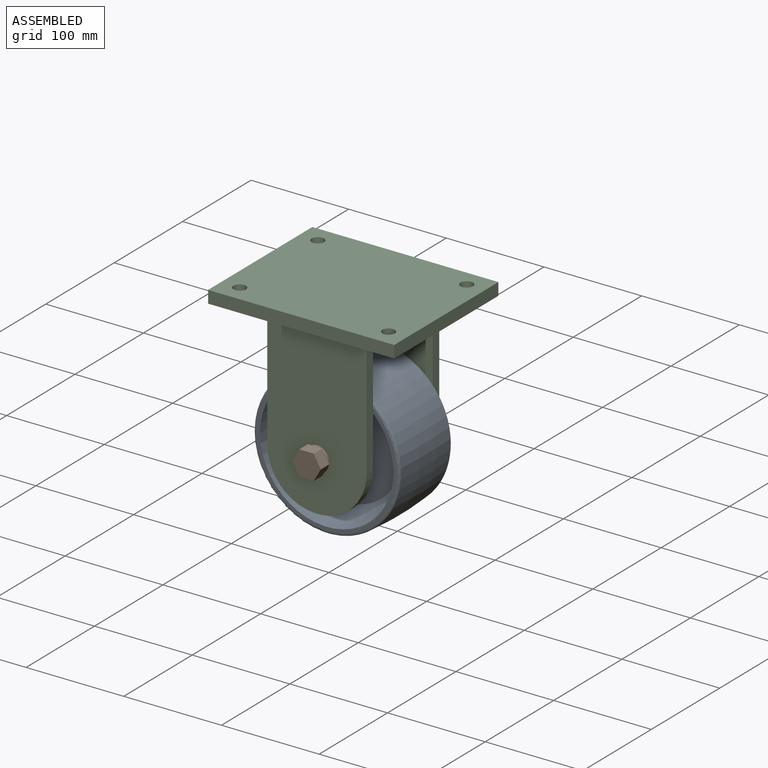
[diagram: assembled view]
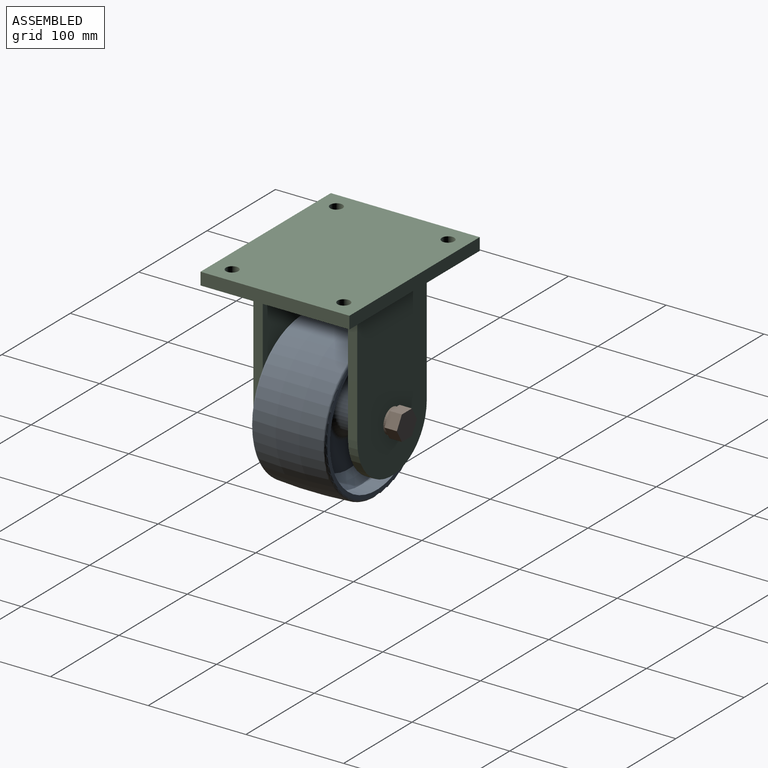
[diagram: assembled view, second angle]
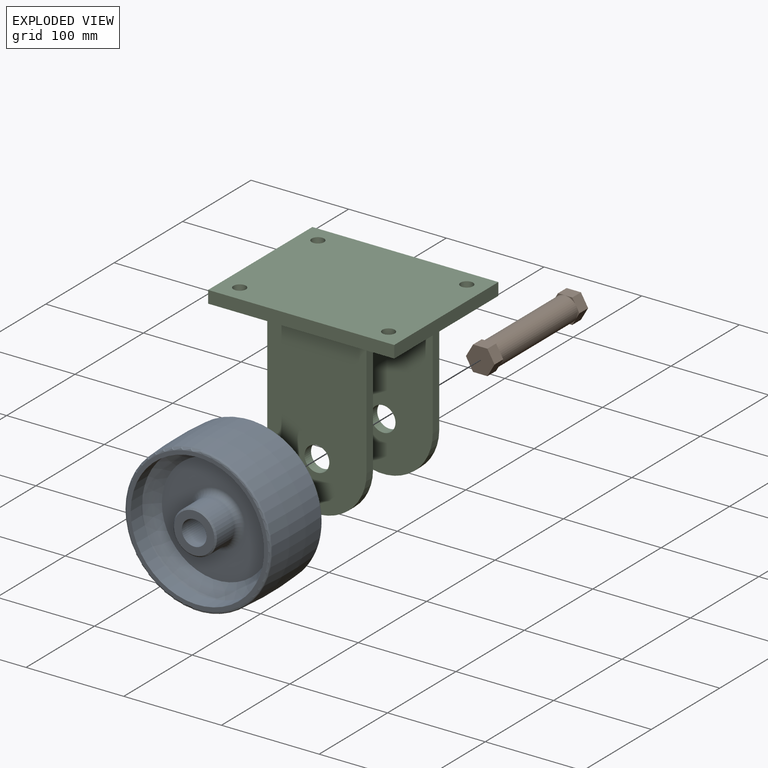
[diagram: exploded view]
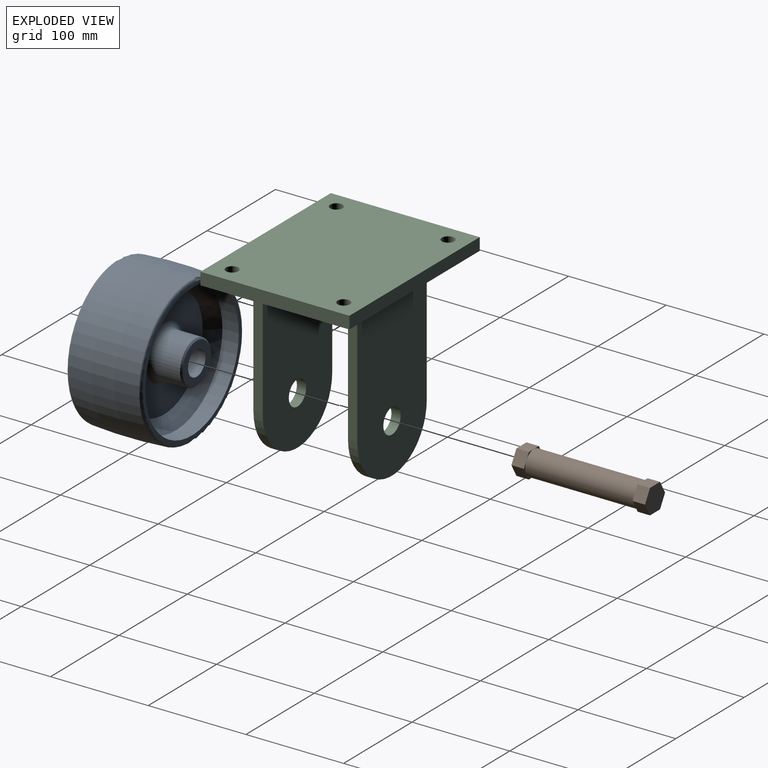
[diagram: exploded view, second angle]
ASSEMBLY  parts=3 mates=2
PART A: 20 faces, bbox 162.1x85.7x162.1 mm
  f0: cone r=22.23mm half-angle=45deg, axis (0,-1,0), area 290.6mm2, adj f5,f17
  f1: torus R=72.33mm, axis (0,-1,0), area 1764mm2, adj f9,f19
  f2: cylinder r=68.33mm len=136.65mm, axis (0,-1,0), area 7186.1mm2, adj f3,f19
  f3: cone r=56.49mm half-angle=45deg, axis (0,1,0), area 6563.6mm2, adj f2,f18
  f4: torus R=28.57mm, axis (0,-1,0), area 1537.5mm2, adj f5,f18
  f5: cylinder r=22.23mm len=44.45mm, axis (0,-1,0), area 3555.8mm2, adj f0,f4
  f6: cylinder r=12.7mm len=85.73mm, axis (0,1,0), area 6840.6mm2, adj f14,f17
  f7: cone r=22.23mm half-angle=45deg, axis (0,1,0), area 290.6mm2, adj f13,f14
  f8: torus R=72.33mm, axis (0,1,0), area 1764mm2, adj f9,f16
  f9: revolved ~152.4x152.4mm, area 34064mm2, adj f1,f8
  f10: cylinder r=68.33mm len=136.65mm, axis (0,1,0), area 7186.1mm2, adj f11,f16
  f11: cone r=56.49mm half-angle=45deg, axis (0,-1,0), area 6563.6mm2, adj f10,f15
  f12: torus R=28.57mm, axis (0,1,0), area 1537.5mm2, adj f13,f15
  f13: cylinder r=22.23mm len=44.45mm, axis (0,1,0), area 3555.8mm2, adj f7,f12
  f14: plane 41.4x41.4mm, normal (0,-1,0), area 839.6mm2, adj f6,f7
  f15: plane 112.98x112.98mm, normal (0,-1,0), area 7459.9mm2, adj f11,f12
  f16: plane 144.65x144.65mm, normal (0,-1,0), area 1767.3mm2, adj f8,f10
  f17: plane 41.4x41.4mm, normal (0,1,0), area 839.6mm2, adj f0,f6
  f18: plane 112.98x112.98mm, normal (0,1,0), area 7459.9mm2, adj f3,f4
  f19: plane 144.65x144.65mm, normal (0,1,0), area 1767.3mm2, adj f1,f2
PART B: 17 faces, bbox 29.3x136.8x25.4 mm
  f0: cylinder r=12.67mm len=111.38mm, axis (0,1,0), area 8869.9mm2, adj f8,f16
  f1: plane 12.7x12.7mm, normal (0.87,0,0.5), area 186.2mm2, adj f2,f6,f7,f8
  f2: plane 14.66x12.7mm, normal (0,0,1), area 186.2mm2, adj f1,f3,f7,f8
  f3: plane 12.7x12.7mm, normal (-0.87,0,0.5), area 186.2mm2, adj f2,f4,f7,f8
  f4: plane 12.7x12.7mm, normal (-0.87,0,-0.5), area 186.2mm2, adj f3,f5,f7,f8
  f5: plane 14.66x12.7mm, normal (0,0,-1), area 186.2mm2, adj f4,f6,f7,f8
  f6: plane 12.7x12.7mm, normal (0.87,0,-0.5), area 186.2mm2, adj f1,f5,f7,f8
  f7: plane 29.33x25.4mm, normal (0,-1,0), area 558.7mm2, adj f1,f2,f3,f4,f5,f6
  f8: plane 29.33x25.4mm, normal (0,1,0), area 54mm2, adj f0,f1,f2,f3,f4,f5,f6
  f9: plane 12.7x12.7mm, normal (0.87,0,0.5), area 186.2mm2, adj f10,f14,f15,f16
  f10: plane 14.66x12.7mm, normal (0,0,1), area 186.2mm2, adj f9,f11,f15,f16
  f11: plane 12.7x12.7mm, normal (-0.87,0,0.5), area 186.2mm2, adj f10,f12,f15,f16
  f12: plane 12.7x12.7mm, normal (-0.87,0,-0.5), area 186.2mm2, adj f11,f13,f15,f16
  f13: plane 14.66x12.7mm, normal (0,0,-1), area 186.2mm2, adj f12,f14,f15,f16
  f14: plane 12.7x12.7mm, normal (0.87,0,-0.5), area 186.2mm2, adj f9,f13,f15,f16
  f15: plane 29.33x25.4mm, normal (0,1,0), area 558.7mm2, adj f9,f10,f11,f12,f13,f14
  f16: plane 29.33x25.4mm, normal (0,-1,0), area 54mm2, adj f0,f9,f10,f11,f12,f13,f14
PART C: 22 faces, bbox 190.5x152.4x190.5 mm
  f0: cylinder r=12.7mm len=25.4mm, axis (0,-1,0), area 760.1mm2, adj f19,f20
  f1: cylinder r=6.35mm len=12.7mm, axis (0,0,1), area 506.7mm2, adj f12,f14
  f2: cylinder r=6.35mm len=12.7mm, axis (0,0,1), area 506.7mm2, adj f12,f14
  f3: cylinder r=12.7mm len=25.4mm, axis (0,1,0), area 760.1mm2, adj f9,f10
  f4: cylinder r=6.35mm len=12.7mm, axis (0,0,1), area 506.7mm2, adj f12,f14
  f5: cylinder r=6.35mm len=12.7mm, axis (0,0,1), area 506.7mm2, adj f12,f14
  f6: plane 127x9.53mm, normal (-1,0,0), area 1209.7mm2, adj f7,f9,f10,f12
  f7: cylinder r=50.8mm len=101.6mm, axis (0,1,0), area 1520.1mm2, adj f6,f8,f9,f10
  f8: plane 127x9.53mm, normal (1,0,0), area 1209.7mm2, adj f7,f9,f10,f12
  f9: plane 177.8x101.6mm, normal (0,-1,0), area 16450.2mm2, adj f3,f6,f7,f8,f12
  f10: plane 177.8x101.6mm, normal (0,1,0), area 16450.2mm2, adj f3,f6,f7,f8,f12
  f11: plane 152.4x12.7mm, normal (-1,0,0), area 1935.5mm2, adj f12,f14,f15,f21
  f12: plane 190.5x152.4mm, normal (0,0,-1), area 26590mm2, adj f1,f2,f4,f5,f6,f8,f9,f10
  f13: plane 152.4x12.7mm, normal (1,0,0), area 1935.5mm2, adj f12,f14,f15,f21
  f14: plane 190.5x152.4mm, normal (0,0,1), area 28525.5mm2, adj f1,f2,f4,f5,f11,f13,f15,f21
  f15: plane 190.5x12.7mm, normal (0,-1,0), area 2419.3mm2, adj f11,f12,f13,f14
  f16: plane 127x9.53mm, normal (-1,0,0), area 1209.7mm2, adj f12,f17,f19,f20
  f17: cylinder r=50.8mm len=101.6mm, axis (0,-1,0), area 1520.1mm2, adj f16,f18,f19,f20
  f18: plane 127x9.53mm, normal (1,0,0), area 1209.7mm2, adj f12,f17,f19,f20
  f19: plane 177.8x101.6mm, normal (0,1,0), area 16450.2mm2, adj f0,f12,f16,f17,f18
  f20: plane 177.8x101.6mm, normal (0,-1,0), area 16450.2mm2, adj f0,f12,f16,f17,f18
  f21: plane 190.5x12.7mm, normal (0,1,0), area 2419.3mm2, adj f11,f12,f13,f14
PLACE A t=(-37.97,-110.98,-0.2)mm
PLACE B t=(-37.97,-110.22,-0.2)mm
PLACE C t=(-37.97,-110.22,-0.2)mm
MATE fastened A.f6 <-> C.f0  axis (0,-1,0) through (-37.97,-153.84,-0.2)mm
MATE fastened C.f0 <-> B.f0  axis (0,1,0) through (-37.97,-57.07,-0.2)mm
